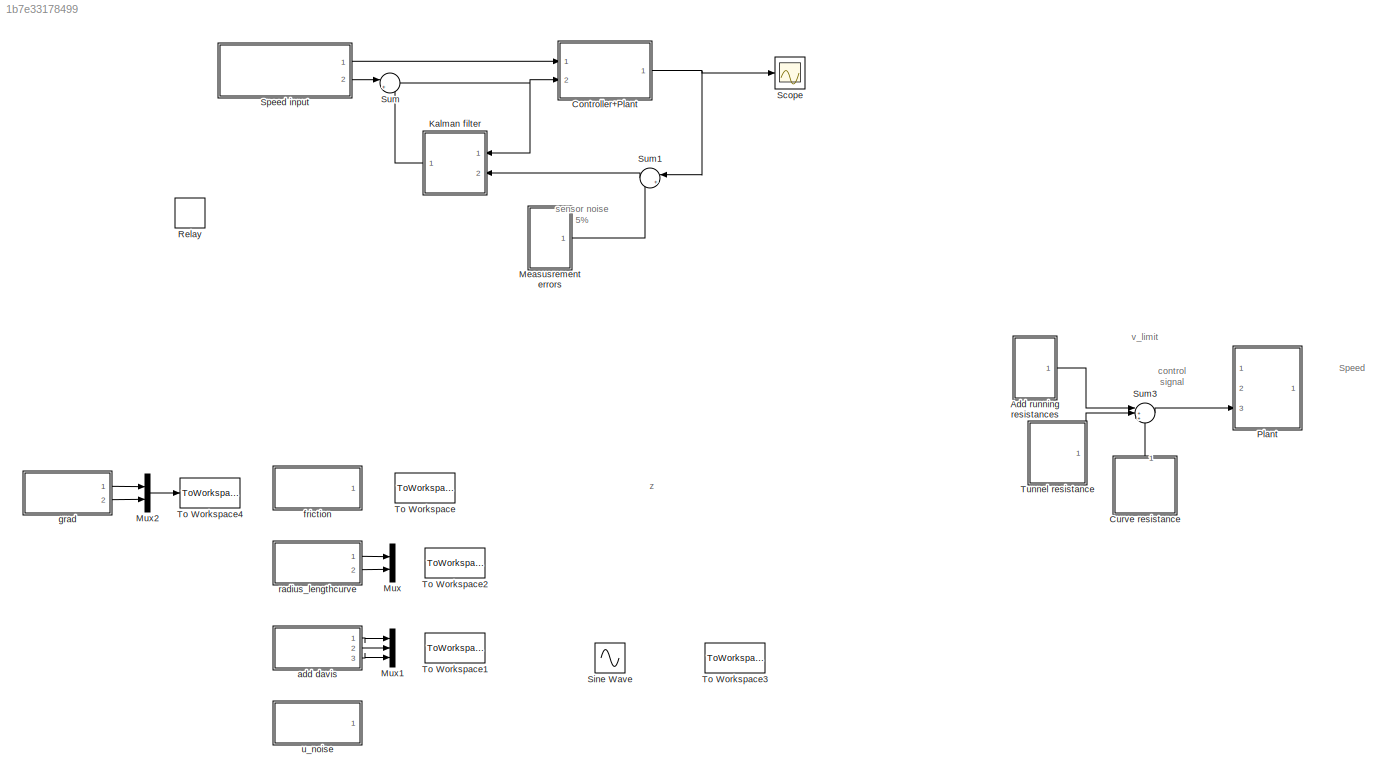
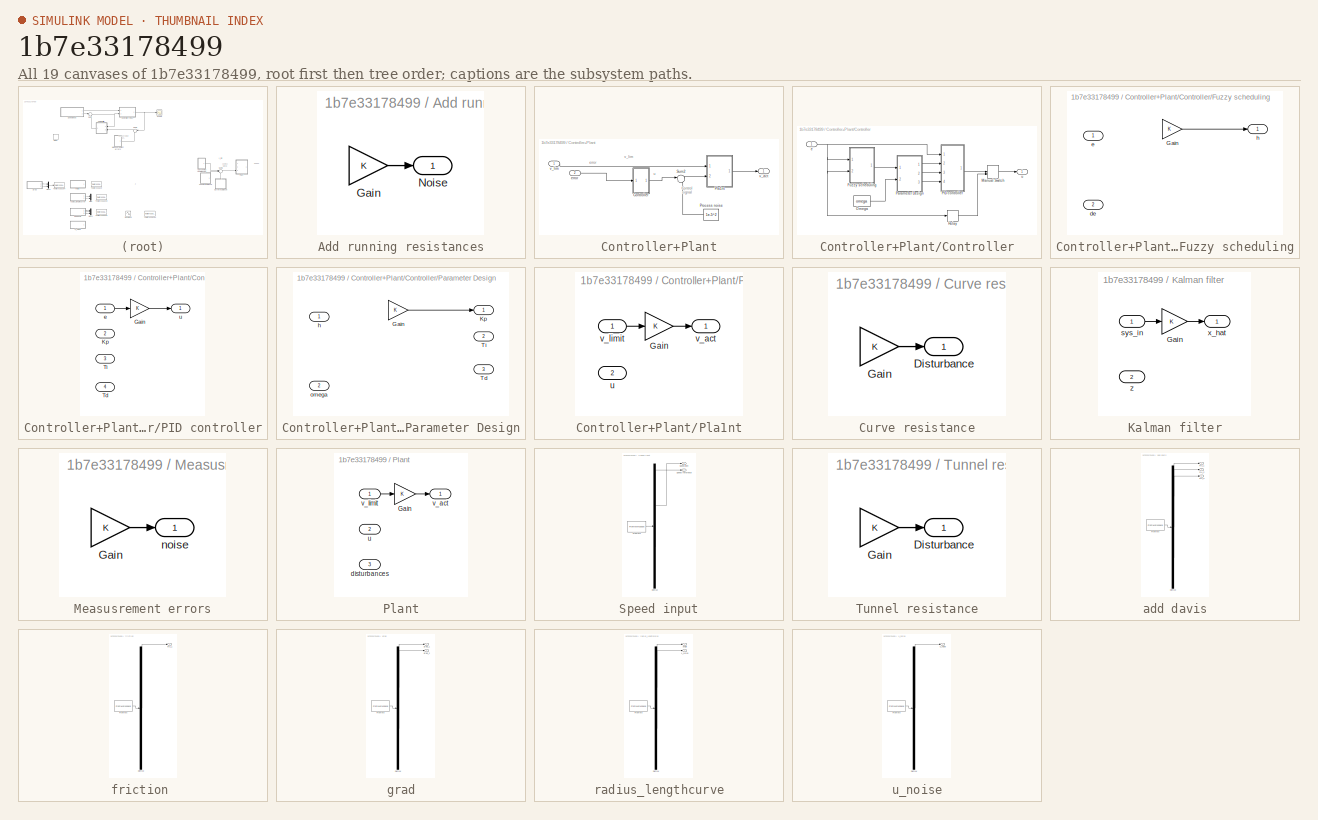
[diagram: thumbnail index - all 19 canvases of the model, root first then tree order]
MODEL slx_1b7e33178499
KIND model
CONFIG AbsTol = auto
CONFIG EnableMultiTasking = off
CONFIG FixedStep = auto
CONFIG MaxStep = auto
CONFIG MinStep = auto
CONFIG RelTol = 1e-3
CONFIG SampleTimeConstraint = Unconstrained
CONFIG Solver = VariableStepAuto
CONFIG SolverName = VariableStepAuto
CONFIG StartTime = 0.0
CONFIG StopTime = 5000
BLOCK [SubSystem] Add running resistances
  Ports = [0, 1]
  RequestExecContextInheritance = off
  Variant = off
BLOCK [Gain] Add running resistances/Gain
  OutDataTypeStr = Inherit: Inherit via internal rule
  ParamDataTypeStr = Inherit: Inherit via internal rule
  SaturateOnIntegerOverflow = off
BLOCK [Outport] Add running resistances/Noise
  IconDisplay = Port number
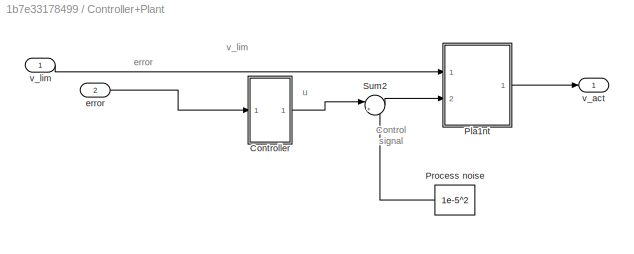
BLOCK [SubSystem] Controller+Plant
  Ports = [2, 1]
  RequestExecContextInheritance = off
  Variant = off
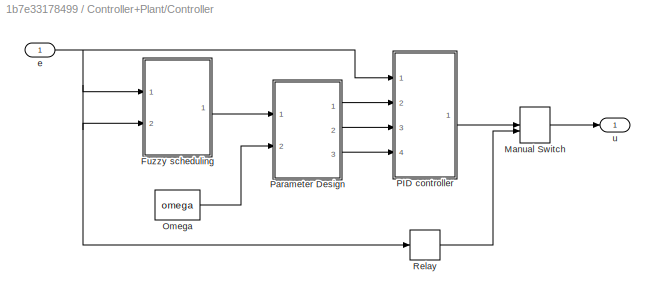
BLOCK [SubSystem] Controller+Plant/Controller
  Ports = [1, 1]
  RequestExecContextInheritance = off
  Variant = off
BLOCK [SubSystem] Controller+Plant/Controller/Fuzzy scheduling
  Ports = [2, 1]
  RequestExecContextInheritance = off
  Variant = off
BLOCK [Gain] Controller+Plant/Controller/Fuzzy scheduling/Gain
  OutDataTypeStr = Inherit: Inherit via internal rule
  ParamDataTypeStr = Inherit: Inherit via internal rule
  SaturateOnIntegerOverflow = off
BLOCK [Inport] Controller+Plant/Controller/Fuzzy scheduling/de
  IconDisplay = Port number
  Port = 2
BLOCK [Inport] Controller+Plant/Controller/Fuzzy scheduling/e
  IconDisplay = Port number
BLOCK [Outport] Controller+Plant/Controller/Fuzzy scheduling/h
  IconDisplay = Port number
BLOCK [ManualSwitch] Controller+Plant/Controller/Manual Switch
BLOCK [Constant] Controller+Plant/Controller/Omega
  Value = omega
BLOCK [SubSystem] Controller+Plant/Controller/PID controller
  Ports = [4, 1]
  RequestExecContextInheritance = off
  Variant = off
BLOCK [Gain] Controller+Plant/Controller/PID controller/Gain
  OutDataTypeStr = Inherit: Inherit via internal rule
  ParamDataTypeStr = Inherit: Inherit via internal rule
  SaturateOnIntegerOverflow = off
BLOCK [Inport] Controller+Plant/Controller/PID controller/Kp
  IconDisplay = Port number
  Port = 2
BLOCK [Inport] Controller+Plant/Controller/PID controller/Td
  IconDisplay = Port number
  Port = 4
BLOCK [Inport] Controller+Plant/Controller/PID controller/Ti
  IconDisplay = Port number
  Port = 3
BLOCK [Inport] Controller+Plant/Controller/PID controller/e
  IconDisplay = Port number
BLOCK [Outport] Controller+Plant/Controller/PID controller/u
  IconDisplay = Port number
BLOCK [SubSystem] Controller+Plant/Controller/Parameter Design
  Ports = [2, 3]
  RequestExecContextInheritance = off
  Variant = off
BLOCK [Gain] Controller+Plant/Controller/Parameter Design/Gain
  OutDataTypeStr = Inherit: Inherit via internal rule
  ParamDataTypeStr = Inherit: Inherit via internal rule
  SaturateOnIntegerOverflow = off
BLOCK [Outport] Controller+Plant/Controller/Parameter Design/Kp
  IconDisplay = Port number
BLOCK [Outport] Controller+Plant/Controller/Parameter Design/Td
  IconDisplay = Port number
  Port = 3
BLOCK [Outport] Controller+Plant/Controller/Parameter Design/Ti
  IconDisplay = Port number
  Port = 2
BLOCK [Inport] Controller+Plant/Controller/Parameter Design/h
  IconDisplay = Port number
BLOCK [Inport] Controller+Plant/Controller/Parameter Design/omega
  IconDisplay = Port number
  Port = 2
BLOCK [Relay] Controller+Plant/Controller/Relay
  InputProcessing = Elements as channels (sample based)
BLOCK [Inport] Controller+Plant/Controller/e
  IconDisplay = Port number
BLOCK [Outport] Controller+Plant/Controller/u
  IconDisplay = Port number
BLOCK [SubSystem] Controller+Plant/Pla1nt
  Ports = [2, 1]
  RequestExecContextInheritance = off
  Variant = off
BLOCK [Gain] Controller+Plant/Pla1nt/Gain
  OutDataTypeStr = Inherit: Inherit via internal rule
  ParamDataTypeStr = Inherit: Inherit via internal rule
  SaturateOnIntegerOverflow = off
BLOCK [Inport] Controller+Plant/Pla1nt/u
  IconDisplay = Port number
  Port = 2
BLOCK [Outport] Controller+Plant/Pla1nt/v_act
  IconDisplay = Port number
BLOCK [Inport] Controller+Plant/Pla1nt/v_limit
  IconDisplay = Port number
BLOCK [Constant] Controller+Plant/Process noise
  Value = 1e-5^2
BLOCK [Sum] Controller+Plant/Sum2
  IconShape = round
  InputSameDT = off
  Inputs = |++
  OutDataTypeStr = Inherit: Inherit via internal rule
  Ports = [2, 1]
  SaturateOnIntegerOverflow = off
BLOCK [Inport] Controller+Plant/error
  IconDisplay = Port number
  Port = 2
BLOCK [Outport] Controller+Plant/v_act
  IconDisplay = Port number
BLOCK [Inport] Controller+Plant/v_lim
  IconDisplay = Port number
BLOCK [SubSystem] Curve resistance
  Ports = [0, 1]
  RequestExecContextInheritance = off
  Variant = off
BLOCK [Outport] Curve resistance/Disturbance
  IconDisplay = Port number
BLOCK [Gain] Curve resistance/Gain
  OutDataTypeStr = Inherit: Inherit via internal rule
  ParamDataTypeStr = Inherit: Inherit via internal rule
  SaturateOnIntegerOverflow = off
BLOCK [SubSystem] Kalman filter
  Ports = [2, 1]
  RequestExecContextInheritance = off
  Variant = off
BLOCK [Gain] Kalman filter/Gain
  OutDataTypeStr = Inherit: Inherit via internal rule
  ParamDataTypeStr = Inherit: Inherit via internal rule
  SaturateOnIntegerOverflow = off
BLOCK [Inport] Kalman filter/sys_in
  IconDisplay = Port number
BLOCK [Outport] Kalman filter/x_hat
  IconDisplay = Port number
BLOCK [Inport] Kalman filter/z
  IconDisplay = Port number
  Port = 2
BLOCK [SubSystem] Measusrement errors
  Ports = [0, 1]
  RequestExecContextInheritance = off
  Variant = off
BLOCK [Gain] Measusrement errors/Gain
  OutDataTypeStr = Inherit: Inherit via internal rule
  ParamDataTypeStr = Inherit: Inherit via internal rule
  SaturateOnIntegerOverflow = off
BLOCK [Outport] Measusrement errors/noise
  IconDisplay = Port number
BLOCK [Mux] Mux
  DisplayOption = bar
  Inputs = 2
  Ports = [2, 1]
BLOCK [Mux] Mux1
  DisplayOption = bar
  Inputs = 3
  Ports = [3, 1]
BLOCK [Mux] Mux2
  DisplayOption = bar
  Inputs = 2
  Ports = [2, 1]
BLOCK [SubSystem] Plant
  Ports = [3, 1]
  RequestExecContextInheritance = off
  Variant = off
BLOCK [Gain] Plant/Gain
  OutDataTypeStr = Inherit: Inherit via internal rule
  ParamDataTypeStr = Inherit: Inherit via internal rule
  SaturateOnIntegerOverflow = off
BLOCK [Inport] Plant/disturbances
  IconDisplay = Port number
  Port = 3
BLOCK [Inport] Plant/u
  IconDisplay = Port number
  Port = 2
BLOCK [Outport] Plant/v_act
  IconDisplay = Port number
BLOCK [Inport] Plant/v_limit
  IconDisplay = Port number
BLOCK [Relay] Relay
  InputProcessing = Elements as channels (sample based)
BLOCK [Scope] Scope
  NumInputPorts = 1
  Ports = [1]
  ScopeSpecificationString = C++SS(StrPVP('SaveName','ScopeData'),StrPVP('LimitDataPoints','on'),StrPVP('DataFormat','Array'),StrPVP('Decimation','1'),StrPVP('BlockParamSampleInput','off'))
BLOCK [Sin] Sine Wave
  Amplitude = 1e-5^2
  Frequency = 1/100
  Ports = [0, 1]
  SampleTime = 1
BLOCK [SubSystem] Speed input
  ClipboardFcn = sigbuilder_block('clipboard');
  CloseFcn = sigbuilder_block('close');
  ContinueFcn = sigbuilder_block('continue');
  CopyFcn = sigbuilder_block('copy');
  DeleteFcn = sigbuilder_block('delete');
  LoadFcn = sigbuilder_block('load');
  MaskHideContents = on
  ModelCloseFcn = sigbuilder_block('modelClose');
  NameChangeFcn = sigbuilder_block('namechange');
  OpenFcn = sigbuilder_block('open',[437.25 153 550.5 359.25 ]);
  PauseFcn = sigbuilder_block('pause');
  Ports = [0, 2]
  PreSaveFcn = sigbuilder_block('preSave');
  RequestExecContextInheritance = off
  StartFcn = sigbuilder_block('start');
  StopFcn = sigbuilder_block('stop');
  Tag = STV Subsys
  Variant = off
BLOCK [Demux] Speed input/Demux
  Outputs = 2
  Ports = [1, 2]
  Tag = STV Demux
BLOCK [FromWorkspace] Speed input/FromWs
  SampleTime = 0
  Tag = STV FromWs
  VariableName = tuvar
  ZeroCross = on
BLOCK [Outport] Speed input/Speed limit
  IconDisplay = Port number
  Tag = STV Outport
BLOCK [Outport] Speed input/Speed reference
  IconDisplay = Port number
  Port = 2
  Tag = STV Outport
BLOCK [Sum] Sum
  IconShape = round
  InputSameDT = off
  Inputs = |++
  OutDataTypeStr = Inherit: Inherit via internal rule
  Ports = [2, 1]
  SaturateOnIntegerOverflow = off
BLOCK [Sum] Sum1
  IconShape = round
  InputSameDT = off
  Inputs = |++
  OutDataTypeStr = Inherit: Inherit via internal rule
  Ports = [2, 1]
  SaturateOnIntegerOverflow = off
BLOCK [Sum] Sum3
  IconShape = round
  InputSameDT = off
  Inputs = |+++
  OutDataTypeStr = Inherit: Inherit via internal rule
  Ports = [3, 1]
  SaturateOnIntegerOverflow = off
BLOCK [ToWorkspace] To Workspace
  MaxDataPoints = inf
  Ports = [1]
  SampleTime = 1
  Save2DSignal = 2-D array (concatenate along first dimension)
  VariableName = mu_1
BLOCK [ToWorkspace] To Workspace1
  MaxDataPoints = inf
  Ports = [1]
  SampleTime = 1
  Save2DSignal = 2-D array (concatenate along first dimension)
  VariableName = add_davis
BLOCK [ToWorkspace] To Workspace2
  MaxDataPoints = inf
  Ports = [1]
  SampleTime = 1
  Save2DSignal = 2-D array (concatenate along first dimension)
  VariableName = angle_Lcurve
BLOCK [ToWorkspace] To Workspace3
  MaxDataPoints = inf
  Ports = [1]
  SampleTime = 1
  Save2DSignal = 2-D array (concatenate along first dimension)
  VariableName = u_noise
BLOCK [ToWorkspace] To Workspace4
  MaxDataPoints = inf
  Ports = [1]
  SampleTime = 1
  Save2DSignal = 2-D array (concatenate along first dimension)
  VariableName = grad
BLOCK [SubSystem] Tunnel resistance
  Ports = [0, 1]
  RequestExecContextInheritance = off
  Variant = off
BLOCK [Outport] Tunnel resistance/Disturbance
  IconDisplay = Port number
BLOCK [Gain] Tunnel resistance/Gain
  OutDataTypeStr = Inherit: Inherit via internal rule
  ParamDataTypeStr = Inherit: Inherit via internal rule
  SaturateOnIntegerOverflow = off
BLOCK [SubSystem] add davis
  ClipboardFcn = sigbuilder_block('clipboard');
  CloseFcn = sigbuilder_block('close');
  ContinueFcn = sigbuilder_block('continue');
  CopyFcn = sigbuilder_block('copy');
  DeleteFcn = sigbuilder_block('delete');
  LoadFcn = sigbuilder_block('load');
  MaskHideContents = on
  ModelCloseFcn = sigbuilder_block('modelClose');
  NameChangeFcn = sigbuilder_block('namechange');
  OpenFcn = sigbuilder_block('open',[437.25 153 550.5 359.25 ]);
  PauseFcn = sigbuilder_block('pause');
  Ports = [0, 3]
  PreSaveFcn = sigbuilder_block('preSave');
  RequestExecContextInheritance = off
  StartFcn = sigbuilder_block('start');
  StopFcn = sigbuilder_block('stop');
  Tag = STV Subsys
  Variant = off
BLOCK [Demux] add davis/Demux
  Outputs = 3
  Ports = [1, 3]
  Tag = STV Demux
BLOCK [FromWorkspace] add davis/FromWs
  Tag = STV FromWs
  VariableName = tuvar
BLOCK [Outport] add davis/mu_1
  IconDisplay = Port number
  Tag = STV Outport
BLOCK [Outport] add davis/mu_2
  IconDisplay = Port number
  Port = 2
  Tag = STV Outport
BLOCK [Outport] add davis/mu_3
  IconDisplay = Port number
  Port = 3
  Tag = STV Outport
BLOCK [SubSystem] friction 
  ClipboardFcn = sigbuilder_block('clipboard');
  CloseFcn = sigbuilder_block('close');
  ContinueFcn = sigbuilder_block('continue');
  CopyFcn = sigbuilder_block('copy');
  DeleteFcn = sigbuilder_block('delete');
  LoadFcn = sigbuilder_block('load');
  MaskHideContents = on
  ModelCloseFcn = sigbuilder_block('modelClose');
  NameChangeFcn = sigbuilder_block('namechange');
  OpenFcn = sigbuilder_block('open',[437.25 153 550.5 359.25 ]);
  PauseFcn = sigbuilder_block('pause');
  Ports = [0, 1]
  PreSaveFcn = sigbuilder_block('preSave');
  RequestExecContextInheritance = off
  StartFcn = sigbuilder_block('start');
  StopFcn = sigbuilder_block('stop');
  Tag = STV Subsys
  Variant = off
BLOCK [Demux] friction /Demux
  Outputs = 1
  Ports = [1, 1]
  Tag = STV Demux
BLOCK [FromWorkspace] friction /FromWs
  Tag = STV FromWs
  VariableName = tuvar
BLOCK [Outport] friction /mu_1
  IconDisplay = Port number
  Tag = STV Outport
BLOCK [SubSystem] grad
  ClipboardFcn = sigbuilder_block('clipboard');
  CloseFcn = sigbuilder_block('close');
  ContinueFcn = sigbuilder_block('continue');
  CopyFcn = sigbuilder_block('copy');
  DeleteFcn = sigbuilder_block('delete');
  LoadFcn = sigbuilder_block('load');
  MaskHideContents = on
  ModelCloseFcn = sigbuilder_block('modelClose');
  NameChangeFcn = sigbuilder_block('namechange');
  OpenFcn = sigbuilder_block('open',[437.25 153 550.5 359.25 ]);
  PauseFcn = sigbuilder_block('pause');
  Ports = [0, 2]
  PreSaveFcn = sigbuilder_block('preSave');
  RequestExecContextInheritance = off
  StartFcn = sigbuilder_block('start');
  StopFcn = sigbuilder_block('stop');
  Tag = STV Subsys
  Variant = off
BLOCK [Demux] grad/Demux
  Outputs = 2
  Ports = [1, 2]
  Tag = STV Demux
BLOCK [FromWorkspace] grad/FromWs
  Tag = STV FromWs
  VariableName = tuvar
BLOCK [Outport] grad/grad_1
  IconDisplay = Port number
  Tag = STV Outport
BLOCK [Outport] grad/grad_2
  IconDisplay = Port number
  Port = 2
  Tag = STV Outport
BLOCK [SubSystem] radius_lengthcurve
  ClipboardFcn = sigbuilder_block('clipboard');
  CloseFcn = sigbuilder_block('close');
  ContinueFcn = sigbuilder_block('continue');
  CopyFcn = sigbuilder_block('copy');
  DeleteFcn = sigbuilder_block('delete');
  LoadFcn = sigbuilder_block('load');
  MaskHideContents = on
  ModelCloseFcn = sigbuilder_block('modelClose');
  NameChangeFcn = sigbuilder_block('namechange');
  OpenFcn = sigbuilder_block('open',[416.25 111.75 550.5 359.25 ]);
  PauseFcn = sigbuilder_block('pause');
  Ports = [0, 2]
  PreSaveFcn = sigbuilder_block('preSave');
  RequestExecContextInheritance = off
  StartFcn = sigbuilder_block('start');
  StopFcn = sigbuilder_block('stop');
  Tag = STV Subsys
  Variant = off
BLOCK [Demux] radius_lengthcurve/Demux
  Outputs = 2
  Ports = [1, 2]
  Tag = STV Demux
BLOCK [FromWorkspace] radius_lengthcurve/FromWs
  Tag = STV FromWs
  VariableName = tuvar
BLOCK [Outport] radius_lengthcurve/L_curve
  IconDisplay = Port number
  Port = 2
  Tag = STV Outport
BLOCK [Outport] radius_lengthcurve/angle
  IconDisplay = Port number
  Tag = STV Outport
BLOCK [SubSystem] u_noise
  ClipboardFcn = sigbuilder_block('clipboard');
  CloseFcn = sigbuilder_block('close');
  ContinueFcn = sigbuilder_block('continue');
  CopyFcn = sigbuilder_block('copy');
  DeleteFcn = sigbuilder_block('delete');
  LoadFcn = sigbuilder_block('load');
  MaskHideContents = on
  ModelCloseFcn = sigbuilder_block('modelClose');
  NameChangeFcn = sigbuilder_block('namechange');
  OpenFcn = sigbuilder_block('open',[437.25 153 550.5 359.25 ]);
  PauseFcn = sigbuilder_block('pause');
  Ports = [0, 1]
  PreSaveFcn = sigbuilder_block('preSave');
  RequestExecContextInheritance = off
  StartFcn = sigbuilder_block('start');
  StopFcn = sigbuilder_block('stop');
  Tag = STV Subsys
  Variant = off
BLOCK [Demux] u_noise/Demux
  Outputs = 1
  Ports = [1, 1]
  Tag = STV Demux
BLOCK [FromWorkspace] u_noise/FromWs
  Tag = STV FromWs
  VariableName = tuvar
BLOCK [Outport] u_noise/u_noise
  IconDisplay = Port number
  Tag = STV Outport
ANNOTATION (root): Speed
ANNOTATION (root): control signal
ANNOTATION (root): sensor noise 5%
ANNOTATION (root): v_limit
ANNOTATION (root): z
ANNOTATION Controller+Plant: Control signal
ANNOTATION Controller+Plant: error
ANNOTATION Controller+Plant: u
ANNOTATION Controller+Plant: v_lim
LINE Add running resistances/Gain:1 -> Add running resistances/Noise:1
LINE Add running resistances:1 -> Sum3:1
LINE Controller+Plant/Controller/Fuzzy scheduling/Gain:1 -> Controller+Plant/Controller/Fuzzy scheduling/h:1
LINE Controller+Plant/Controller/Fuzzy scheduling:1 -> Controller+Plant/Controller/Parameter Design:1
LINE Controller+Plant/Controller/Manual Switch:1 -> Controller+Plant/Controller/u:1
LINE Controller+Plant/Controller/Omega:1 -> Controller+Plant/Controller/Parameter Design:2
LINE Controller+Plant/Controller/PID controller/Gain:1 -> Controller+Plant/Controller/PID controller/u:1
LINE Controller+Plant/Controller/PID controller/e:1 -> Controller+Plant/Controller/PID controller/Gain:1
LINE Controller+Plant/Controller/PID controller:1 -> Controller+Plant/Controller/Manual Switch:1
LINE Controller+Plant/Controller/Parameter Design/Gain:1 -> Controller+Plant/Controller/Parameter Design/Kp:1
LINE Controller+Plant/Controller/Parameter Design:1 -> Controller+Plant/Controller/PID controller:2
LINE Controller+Plant/Controller/Parameter Design:2 -> Controller+Plant/Controller/PID controller:3
LINE Controller+Plant/Controller/Parameter Design:3 -> Controller+Plant/Controller/PID controller:4
LINE Controller+Plant/Controller/Relay:1 -> Controller+Plant/Controller/Manual Switch:2
NET Controller+Plant/Controller/e:1 -> Controller+Plant/Controller/Fuzzy scheduling:1, Controller+Plant/Controller/Fuzzy scheduling:2, Controller+Plant/Controller/PID controller:1, Controller+Plant/Controller/Relay:1
LINE Controller+Plant/Controller:1 -> Controller+Plant/Sum2:1
LINE Controller+Plant/Pla1nt/Gain:1 -> Controller+Plant/Pla1nt/v_act:1
LINE Controller+Plant/Pla1nt/v_limit:1 -> Controller+Plant/Pla1nt/Gain:1
LINE Controller+Plant/Pla1nt:1 -> Controller+Plant/v_act:1
LINE Controller+Plant/Process noise:1 -> Controller+Plant/Sum2:2
LINE Controller+Plant/Sum2:1 -> Controller+Plant/Pla1nt:2
LINE Controller+Plant/error:1 -> Controller+Plant/Controller:1
LINE Controller+Plant/v_lim:1 -> Controller+Plant/Pla1nt:1
NET Controller+Plant:1 -> Scope:1, Sum1:1
LINE Curve resistance/Gain:1 -> Curve resistance/Disturbance:1
LINE Curve resistance:1 -> Sum3:3
LINE Kalman filter/Gain:1 -> Kalman filter/x_hat:1
LINE Kalman filter/sys_in:1 -> Kalman filter/Gain:1
LINE Kalman filter:1 -> Sum:2
LINE Measusrement errors/Gain:1 -> Measusrement errors/noise:1
LINE Measusrement errors:1 -> Sum1:2
LINE Mux2:1 -> To Workspace4:1
LINE Plant/Gain:1 -> Plant/v_act:1
LINE Plant/v_limit:1 -> Plant/Gain:1
LINE Speed input:1 -> Controller+Plant:1
LINE Speed input:2 -> Sum:1
LINE Sum1:1 -> Kalman filter:2
LINE Sum3:1 -> Plant:3
NET Sum:1 -> Controller+Plant:2, Kalman filter:1
LINE Tunnel resistance/Gain:1 -> Tunnel resistance/Disturbance:1
LINE Tunnel resistance:1 -> Sum3:2
LINE add davis:1 -> Mux1:1
LINE add davis:2 -> Mux1:2
LINE add davis:3 -> Mux1:3
LINE grad:1 -> Mux2:1
LINE grad:2 -> Mux2:2
LINE radius_lengthcurve:1 -> Mux:1
LINE radius_lengthcurve:2 -> Mux:2
note: NET lines group one-source signal fan-out (src -> all destinations, sorted); 1:1 wires keep LINE
